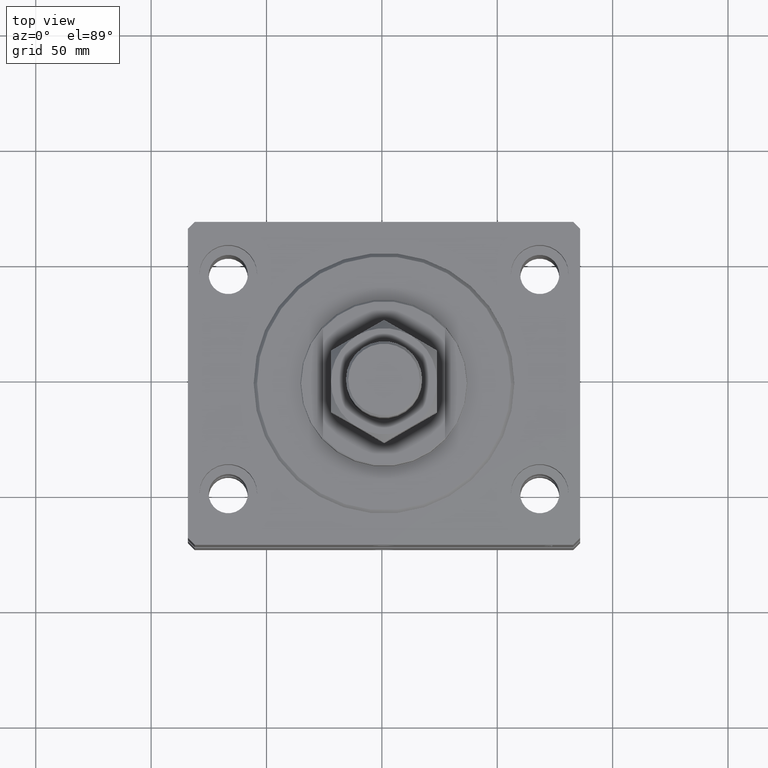
[diagram: clean part render]
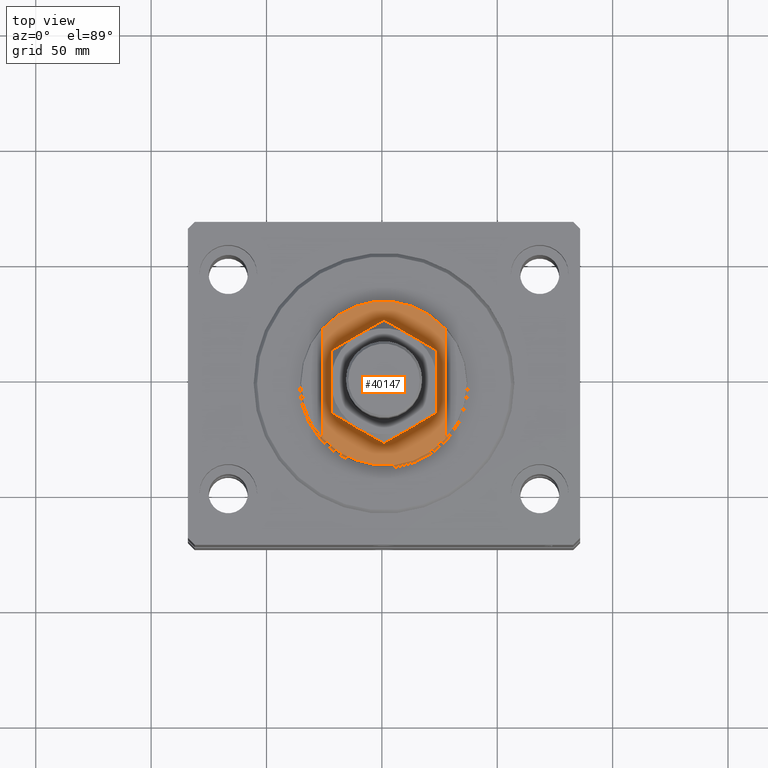
[diagram: same view with one face highlighted and labeled with its STEP entity id]
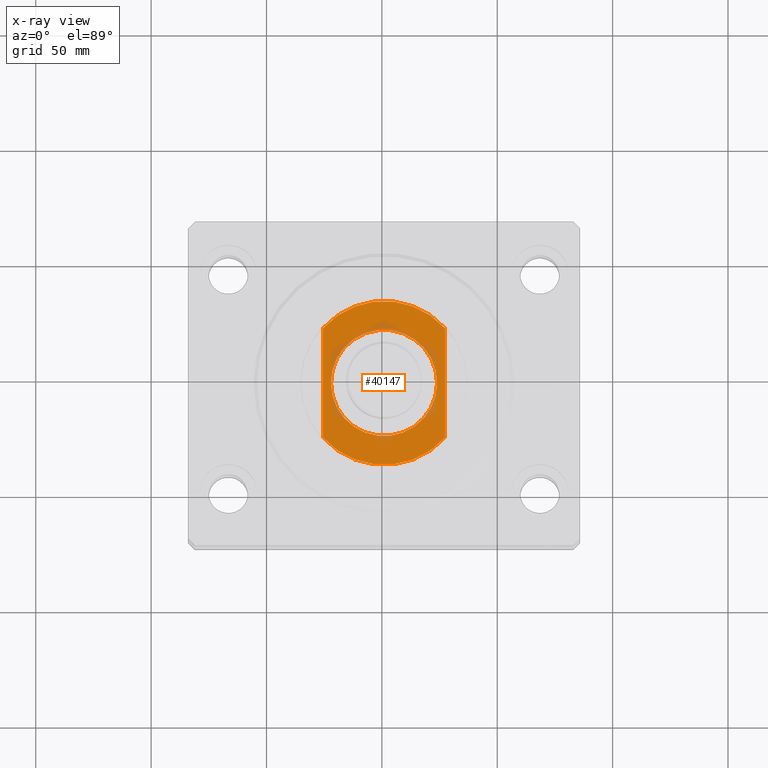
[diagram: x-ray of the same camera — body ghosted, the highlighted face saturated]
A machine part, top view. The second image highlights one B-rep face of the part: STEP entity #40147.
The next image is the same camera in x-ray: the body ghosted, the highlighted face saturated — about 12% of this face is hidden behind the body in this view.
In plain terms, the highlighted planar face has unit normal (0, 0, 1).
Its self-contained STEP definition (entity closure, byte-faithful):
#69 = CARTESIAN_POINT ( 'NONE',  ( 26.50000000000000000, 23.62202362203536765, -8.000000000000000000 ) ) ;
#762 = CIRCLE ( 'NONE', #22175, 23.00000000000001776 ) ;
#779 = AXIS2_PLACEMENT_3D ( 'NONE', #14198, #6990, #3399 ) ;
#1335 = ORIENTED_EDGE ( 'NONE', *, *, #1748, .T. ) ;
#1748 = EDGE_CURVE ( 'NONE', #12053, #34119, #26578, .T. ) ;
#2633 = CARTESIAN_POINT ( 'NONE',  ( 0.000000000000000000, 0.000000000000000000, -8.000000000000000000 ) ) ;
#3055 = EDGE_CURVE ( 'NONE', #18157, #12053, #38787, .T. ) ;
#3399 = DIRECTION ( 'NONE',  ( -1.000000000000000000, 0.000000000000000000, 0.000000000000000000 ) ) ;
#3624 = AXIS2_PLACEMENT_3D ( 'NONE', #44999, #12899, #15784 ) ;
#5687 = ORIENTED_EDGE ( 'NONE', *, *, #3055, .T. ) ;
#6088 = EDGE_LOOP ( 'NONE', ( #44390, #32788 ) ) ;
#6217 = DIRECTION ( 'NONE',  ( 0.000000000000000000, 0.000000000000000000, -1.000000000000000000 ) ) ;
#6990 = DIRECTION ( 'NONE',  ( 0.000000000000000000, 0.000000000000000000, -1.000000000000000000 ) ) ;
#7230 = DIRECTION ( 'NONE',  ( -1.000000000000000000, 0.000000000000000000, 0.000000000000000000 ) ) ;
#7685 = EDGE_CURVE ( 'NONE', #42102, #34119, #9128, .T. ) ;
#9128 = LINE ( 'NONE', #41711, #46544 ) ;
#9628 = DIRECTION ( 'NONE',  ( -1.000000000000000000, 0.000000000000000000, 0.000000000000000000 ) ) ;
#10591 = CARTESIAN_POINT ( 'NONE',  ( 0.000000000000000000, 0.000000000000000000, -8.000000000000000000 ) ) ;
#10855 = CARTESIAN_POINT ( 'NONE',  ( -26.50000000000000000, 23.62202362203536765, -8.000000000000000000 ) ) ;
#11782 = DIRECTION ( 'NONE',  ( -0.000000000000000000, -1.000000000000000000, -0.000000000000000000 ) ) ;
#12046 = EDGE_CURVE ( 'NONE', #42102, #18157, #29077, .T. ) ;
#12053 = VERTEX_POINT ( 'NONE', #15129 ) ;
#12899 = DIRECTION ( 'NONE',  ( 0.000000000000000000, 0.000000000000000000, -1.000000000000000000 ) ) ;
#14198 = CARTESIAN_POINT ( 'NONE',  ( 0.000000000000000000, 0.000000000000000000, -8.000000000000000000 ) ) ;
#14781 = VERTEX_POINT ( 'NONE', #24119 ) ;
#15129 = CARTESIAN_POINT ( 'NONE',  ( 26.50000000000000000, -23.62202362203536765, -8.000000000000000000 ) ) ;
#15784 = DIRECTION ( 'NONE',  ( -1.000000000000000000, 0.000000000000000000, 0.000000000000000000 ) ) ;
#16539 = FACE_BOUND ( 'NONE', #6088, .T. ) ;
#18157 = VERTEX_POINT ( 'NONE', #69 ) ;
#19577 = AXIS2_PLACEMENT_3D ( 'NONE', #10591, #25679, #7230 ) ;
#22175 = AXIS2_PLACEMENT_3D ( 'NONE', #45566, #26900, #9628 ) ;
#23346 = EDGE_CURVE ( 'NONE', #25168, #14781, #762, .T. ) ;
#23478 = ORIENTED_EDGE ( 'NONE', *, *, #12046, .T. ) ;
#23573 = VECTOR ( 'NONE', #34965, 1000.000000000000000 ) ;
#24119 = CARTESIAN_POINT ( 'NONE',  ( 23.00000000000001776, 2.816687638038914718E-15, -8.000000000000000000 ) ) ;
#25168 = VERTEX_POINT ( 'NONE', #33343 ) ;
#25679 = DIRECTION ( 'NONE',  ( -0.000000000000000000, -0.000000000000000000, 1.000000000000000000 ) ) ;
#26578 = CIRCLE ( 'NONE', #3624, 35.49999999999996447 ) ;
#26900 = DIRECTION ( 'NONE',  ( -0.000000000000000000, -0.000000000000000000, 1.000000000000000000 ) ) ;
#27082 = PLANE ( 'NONE',  #28703 ) ;
#27333 = ORIENTED_EDGE ( 'NONE', *, *, #7685, .F. ) ;
#28703 = AXIS2_PLACEMENT_3D ( 'NONE', #2633, #6217, #34970 ) ;
#29077 = CIRCLE ( 'NONE', #779, 35.49999999999996447 ) ;
#30936 = EDGE_LOOP ( 'NONE', ( #23478, #5687, #1335, #27333 ) ) ;
#31148 = FACE_OUTER_BOUND ( 'NONE', #30936, .T. ) ;
#32788 = ORIENTED_EDGE ( 'NONE', *, *, #41028, .T. ) ;
#33343 = CARTESIAN_POINT ( 'NONE',  ( -23.00000000000001776, 0.000000000000000000, -8.000000000000000000 ) ) ;
#34119 = VERTEX_POINT ( 'NONE', #43954 ) ;
#34965 = DIRECTION ( 'NONE',  ( 0.000000000000000000, -1.000000000000000000, -0.000000000000000000 ) ) ;
#34970 = DIRECTION ( 'NONE',  ( -1.000000000000000000, 0.000000000000000000, -0.000000000000000000 ) ) ;
#35200 = CARTESIAN_POINT ( 'NONE',  ( 26.50000000000000000, -36.36963018783666257, -8.000000000000000000 ) ) ;
#38787 = LINE ( 'NONE', #35200, #23573 ) ;
#39425 = CIRCLE ( 'NONE', #19577, 23.00000000000001776 ) ;
#40147 = ADVANCED_FACE ( 'NONE', ( #16539, #31148 ), #27082, .T. ) ;
#41028 = EDGE_CURVE ( 'NONE', #14781, #25168, #39425, .T. ) ;
#41711 = CARTESIAN_POINT ( 'NONE',  ( -26.50000000000000000, -36.36963018783666257, -8.000000000000000000 ) ) ;
#42102 = VERTEX_POINT ( 'NONE', #10855 ) ;
#43954 = CARTESIAN_POINT ( 'NONE',  ( -26.50000000000000711, -23.62202362203537476, -8.000000000000000000 ) ) ;
#44390 = ORIENTED_EDGE ( 'NONE', *, *, #23346, .T. ) ;
#44999 = CARTESIAN_POINT ( 'NONE',  ( 0.000000000000000000, 0.000000000000000000, -8.000000000000000000 ) ) ;
#45566 = CARTESIAN_POINT ( 'NONE',  ( 0.000000000000000000, 0.000000000000000000, -8.000000000000000000 ) ) ;
#46544 = VECTOR ( 'NONE', #11782, 1000.000000000000000 ) ;